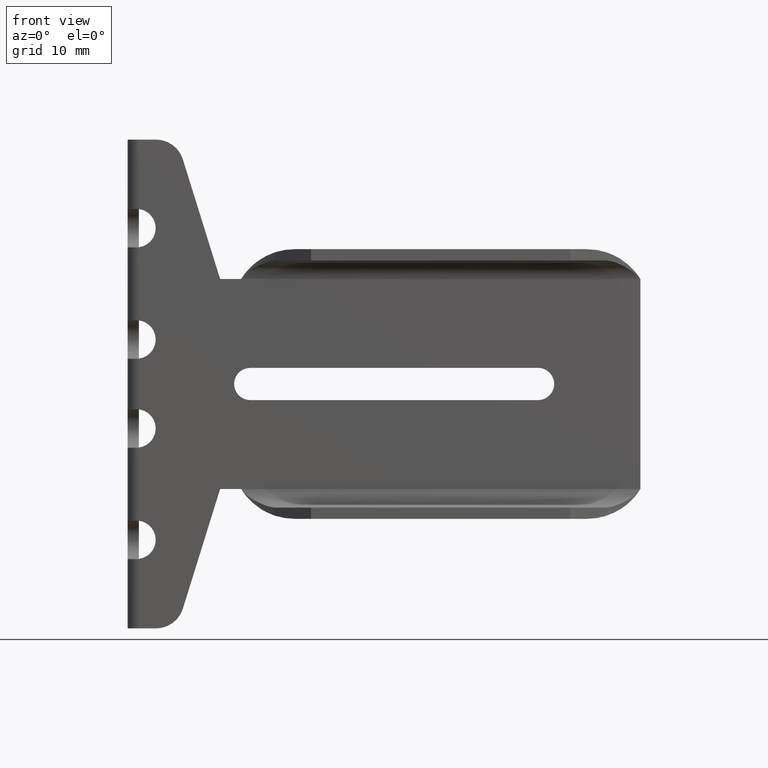
[diagram: clean part render]
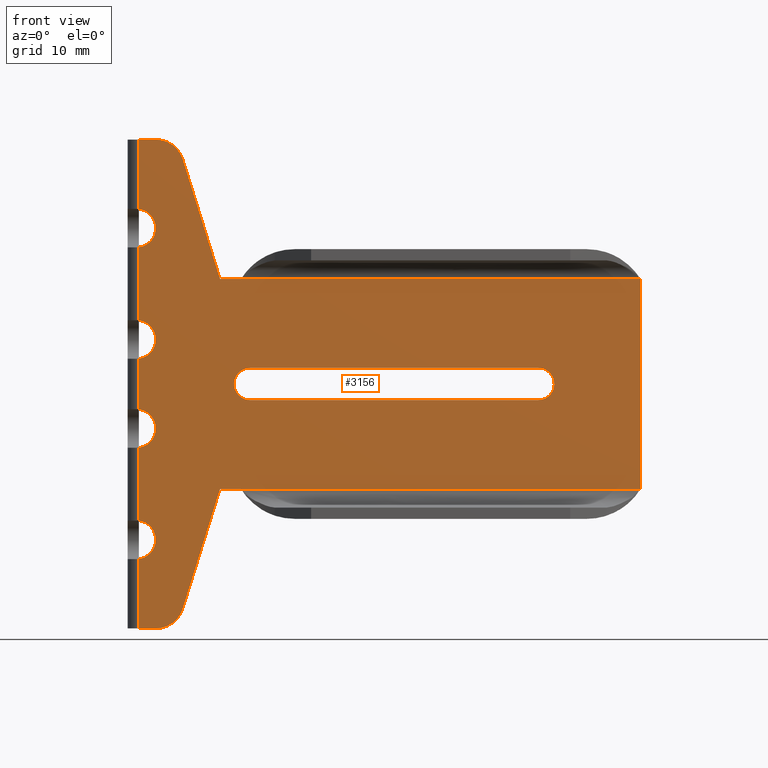
[diagram: same view with one face highlighted and labeled with its STEP entity id]
A machine part, front view. The second image highlights one B-rep face of the part: STEP entity #3156.
In plain terms, the highlighted face is a freeform B-spline surface patch.
Its self-contained STEP definition (entity closure, byte-faithful):
#49=CARTESIAN_POINT('',(17.500000000000000,-18.300000000000001,-2.300000000000000));
#50=VERTEX_POINT('',#49);
#51=CARTESIAN_POINT('',(58.600000000000001,-18.300000000000001,-2.300000000000000));
#52=VERTEX_POINT('',#51);
#53=CARTESIAN_POINT('',(17.500000000000000,-18.300000000000001,-2.300000000000000));
#54=CARTESIAN_POINT('',(58.600000000000001,-18.300000000000001,-2.300000000000000));
#55=QUASI_UNIFORM_CURVE('',1,(#53,#54),.UNSPECIFIED.,.F.,.U.);
#56=EDGE_CURVE('',#50,#52,#55,.T.);
#98=CARTESIAN_POINT('',(17.500000000000000,-18.300000000000001,2.300000000000000));
#99=VERTEX_POINT('',#98);
#100=CARTESIAN_POINT('',(17.500000000000000,-18.300000000000001,2.300000000000000));
#101=CARTESIAN_POINT('',(15.199999999999999,-18.300000000000004,2.300000000000000));
#102=CARTESIAN_POINT('',(15.199999999999999,-18.300000000000001,0.0));
#103=CARTESIAN_POINT('',(15.199999999999999,-18.300000000000004,-2.300000000000000));
#104=CARTESIAN_POINT('',(17.500000000000000,-18.300000000000001,-2.300000000000000));
#112=(BOUNDED_CURVE()B_SPLINE_CURVE(2,(#100,#101,#102,#103,#104),.UNSPECIFIED.,.F.,.U.)B_SPLINE_CURVE_WITH_KNOTS((3,2,3),(0.0,0.500000000000000,1.0),.UNSPECIFIED.)CURVE()GEOMETRIC_REPRESENTATION_ITEM()RATIONAL_B_SPLINE_CURVE((1.0,0.707106781186547,1.0,0.707106781186547,1.0))REPRESENTATION_ITEM(''));
#113=EDGE_CURVE('',#99,#50,#112,.T.);
#146=CARTESIAN_POINT('',(58.600000000000001,-18.300000000000001,2.300000000000000));
#147=VERTEX_POINT('',#146);
#148=CARTESIAN_POINT('',(58.600000000000001,-18.300000000000001,2.300000000000000));
#149=CARTESIAN_POINT('',(17.500000000000000,-18.300000000000001,2.300000000000000));
#150=QUASI_UNIFORM_CURVE('',1,(#148,#149),.UNSPECIFIED.,.F.,.U.);
#151=EDGE_CURVE('',#147,#99,#150,.T.);
#187=CARTESIAN_POINT('',(58.600000000000001,-18.300000000000001,-2.300000000000000));
#188=CARTESIAN_POINT('',(60.899999999999999,-18.300000000000004,-2.300000000000000));
#189=CARTESIAN_POINT('',(60.899999999999999,-18.300000000000001,0.0));
#190=CARTESIAN_POINT('',(60.899999999999999,-18.300000000000004,2.300000000000000));
#191=CARTESIAN_POINT('',(58.600000000000001,-18.300000000000001,2.300000000000000));
#199=(BOUNDED_CURVE()B_SPLINE_CURVE(2,(#187,#188,#189,#190,#191),.UNSPECIFIED.,.F.,.U.)B_SPLINE_CURVE_WITH_KNOTS((3,2,3),(0.0,0.500000000000000,1.0),.UNSPECIFIED.)CURVE()GEOMETRIC_REPRESENTATION_ITEM()RATIONAL_B_SPLINE_CURVE((1.0,0.707106781186547,1.0,0.707106781186547,1.0))REPRESENTATION_ITEM(''));
#200=EDGE_CURVE('',#52,#147,#199,.T.);
#240=CARTESIAN_POINT('',(1.600000000000000,-18.300000000000001,-24.977636339397151));
#241=VERTEX_POINT('',#240);
#242=CARTESIAN_POINT('',(1.600000000000000,-18.300000000000001,-19.522363660602849));
#243=VERTEX_POINT('',#242);
#244=CARTESIAN_POINT('',(1.600000000000001,-18.300000000000001,-24.977636339397161));
#245=CARTESIAN_POINT('',(3.999999999999900,-18.300000000000004,-24.669677397852244));
#246=CARTESIAN_POINT('',(3.999999999999900,-18.300000000000001,-22.250000000000000));
#247=CARTESIAN_POINT('',(3.999999999999900,-18.300000000000004,-19.830322602147753));
#248=CARTESIAN_POINT('',(1.600000000000002,-18.300000000000001,-19.522363660602839));
#256=(BOUNDED_CURVE()B_SPLINE_CURVE(2,(#244,#245,#246,#247,#248),.UNSPECIFIED.,.F.,.U.)B_SPLINE_CURVE_WITH_KNOTS((3,2,3),(0.0,0.500000000000000,1.0),.UNSPECIFIED.)CURVE()GEOMETRIC_REPRESENTATION_ITEM()RATIONAL_B_SPLINE_CURVE((1.0,0.750757193529561,1.0,0.750757193529561,1.0))REPRESENTATION_ITEM(''));
#257=EDGE_CURVE('',#241,#243,#256,.T.);
#296=CARTESIAN_POINT('',(1.600000000000045,-18.300000000000001,-19.500000000000000));
#297=VERTEX_POINT('',#296);
#349=CARTESIAN_POINT('',(1.600000000000045,-18.300000000000001,-25.0));
#350=VERTEX_POINT('',#349);
#466=CARTESIAN_POINT('',(1.600000000000000,-18.300000000000001,-9.077636339397149));
#467=VERTEX_POINT('',#466);
#468=CARTESIAN_POINT('',(1.600000000000000,-18.300000000000001,-3.622363660602835));
#469=VERTEX_POINT('',#468);
#470=CARTESIAN_POINT('',(1.600000000000001,-18.300000000000001,-9.077636339397158));
#471=CARTESIAN_POINT('',(3.999999999999900,-18.300000000000004,-8.769677397852240));
#472=CARTESIAN_POINT('',(3.999999999999900,-18.300000000000001,-6.350000000000000));
#473=CARTESIAN_POINT('',(3.999999999999900,-18.300000000000004,-3.930322602147758));
#474=CARTESIAN_POINT('',(1.599999999999999,-18.300000000000001,-3.622363660602841));
#482=(BOUNDED_CURVE()B_SPLINE_CURVE(2,(#470,#471,#472,#473,#474),.UNSPECIFIED.,.F.,.U.)B_SPLINE_CURVE_WITH_KNOTS((3,2,3),(0.0,0.500000000000000,1.0),.UNSPECIFIED.)CURVE()GEOMETRIC_REPRESENTATION_ITEM()RATIONAL_B_SPLINE_CURVE((1.0,0.750757193529561,1.0,0.750757193529561,1.0))REPRESENTATION_ITEM(''));
#483=EDGE_CURVE('',#467,#469,#482,.T.);
#522=CARTESIAN_POINT('',(1.600000000000045,-18.300000000000001,-3.600000000000000));
#523=VERTEX_POINT('',#522);
#575=CARTESIAN_POINT('',(1.600000000000045,-18.300000000000001,-9.100000000000000));
#576=VERTEX_POINT('',#575);
#692=CARTESIAN_POINT('',(1.600000000000000,-18.300000000000001,3.622363660602835));
#693=VERTEX_POINT('',#692);
#694=CARTESIAN_POINT('',(1.600000000000000,-18.300000000000001,9.077636339397149));
#695=VERTEX_POINT('',#694);
#696=CARTESIAN_POINT('',(1.599999999999998,-18.300000000000001,3.622363660602841));
#697=CARTESIAN_POINT('',(3.999999999999900,-18.299999999999994,3.930322602147759));
#698=CARTESIAN_POINT('',(3.999999999999900,-18.300000000000001,6.350000000000000));
#699=CARTESIAN_POINT('',(3.999999999999900,-18.299999999999994,8.769677397852240));
#700=CARTESIAN_POINT('',(1.600000000000002,-18.300000000000001,9.077636339397158));
#708=(BOUNDED_CURVE()B_SPLINE_CURVE(2,(#696,#697,#698,#699,#700),.UNSPECIFIED.,.F.,.U.)B_SPLINE_CURVE_WITH_KNOTS((3,2,3),(0.0,0.500000000000000,1.0),.UNSPECIFIED.)CURVE()GEOMETRIC_REPRESENTATION_ITEM()RATIONAL_B_SPLINE_CURVE((1.0,0.750757193529560,1.0,0.750757193529560,1.0))REPRESENTATION_ITEM(''));
#709=EDGE_CURVE('',#693,#695,#708,.T.);
#748=CARTESIAN_POINT('',(1.600000000000045,-18.300000000000001,9.100000000000000));
#749=VERTEX_POINT('',#748);
#801=CARTESIAN_POINT('',(1.600000000000045,-18.300000000000001,3.600000000000000));
#802=VERTEX_POINT('',#801);
#918=CARTESIAN_POINT('',(1.600000000000000,-18.300000000000001,19.522363660602849));
#919=VERTEX_POINT('',#918);
#920=CARTESIAN_POINT('',(1.600000000000000,-18.300000000000001,24.977636339397151));
#921=VERTEX_POINT('',#920);
#922=CARTESIAN_POINT('',(1.600000000000001,-18.300000000000001,19.522363660602839));
#923=CARTESIAN_POINT('',(3.999999999999900,-18.300000000000004,19.830322602147753));
#924=CARTESIAN_POINT('',(3.999999999999900,-18.300000000000001,22.250000000000000));
#925=CARTESIAN_POINT('',(3.999999999999900,-18.300000000000004,24.669677397852244));
#926=CARTESIAN_POINT('',(1.600000000000002,-18.300000000000001,24.977636339397161));
#934=(BOUNDED_CURVE()B_SPLINE_CURVE(2,(#922,#923,#924,#925,#926),.UNSPECIFIED.,.F.,.U.)B_SPLINE_CURVE_WITH_KNOTS((3,2,3),(0.0,0.500000000000000,1.0),.UNSPECIFIED.)CURVE()GEOMETRIC_REPRESENTATION_ITEM()RATIONAL_B_SPLINE_CURVE((1.0,0.750757193529561,1.0,0.750757193529561,1.0))REPRESENTATION_ITEM(''));
#935=EDGE_CURVE('',#919,#921,#934,.T.);
#974=CARTESIAN_POINT('',(1.600000000000045,-18.300000000000001,25.0));
#975=VERTEX_POINT('',#974);
#1027=CARTESIAN_POINT('',(1.600000000000000,-18.300000000000001,19.500000000000000));
#1028=VERTEX_POINT('',#1027);
#1327=CARTESIAN_POINT('',(1.600000000000000,-18.300000000000001,34.899999999999999));
#1328=VERTEX_POINT('',#1327);
#1329=CARTESIAN_POINT('',(1.600000000000000,-18.300000000000001,34.899999999999999));
#1330=CARTESIAN_POINT('',(1.600000000000045,-18.300000000000001,25.0));
#1331=QUASI_UNIFORM_CURVE('',1,(#1329,#1330),.UNSPECIFIED.,.F.,.U.);
#1332=EDGE_CURVE('',#1328,#975,#1331,.T.);
#1380=CARTESIAN_POINT('',(16.199999999999999,-18.300000000000001,15.0));
#1381=VERTEX_POINT('',#1380);
#1394=CARTESIAN_POINT('',(13.199999999999999,-18.300000000000001,15.0));
#1395=VERTEX_POINT('',#1394);
#1401=CARTESIAN_POINT('',(13.199999999999999,-18.300000000000001,15.0));
#1402=CARTESIAN_POINT('',(16.199999999999999,-18.300000000000001,15.0));
#1403=QUASI_UNIFORM_CURVE('',1,(#1401,#1402),.UNSPECIFIED.,.F.,.U.);
#1404=EDGE_CURVE('',#1395,#1381,#1403,.T.);
#1422=CARTESIAN_POINT('',(7.875532910344050,-18.300000000000001,32.089821435145403));
#1423=VERTEX_POINT('',#1422);
#1429=CARTESIAN_POINT('',(7.875532910344050,-18.300000000000001,32.089821435145403));
#1430=CARTESIAN_POINT('',(13.199999999999999,-18.300000000000001,15.0));
#1431=QUASI_UNIFORM_CURVE('',1,(#1429,#1430),.UNSPECIFIED.,.F.,.U.);
#1432=EDGE_CURVE('',#1423,#1395,#1431,.T.);
#1466=CARTESIAN_POINT('',(4.056589999999799,-18.300000000000001,34.899999999999999));
#1467=VERTEX_POINT('',#1466);
#1473=CARTESIAN_POINT('',(7.875532910344041,-18.300000000000001,32.089821435145403));
#1474=CARTESIAN_POINT('',(6.999999871085082,-18.300000000000001,34.899999999999999));
#1475=CARTESIAN_POINT('',(4.056589999999799,-18.300000000000001,34.899999999999999));
#1483=(BOUNDED_CURVE()B_SPLINE_CURVE(2,(#1473,#1474,#1475),.UNSPECIFIED.,.F.,.U.)CURVE()GEOMETRIC_REPRESENTATION_ITEM()QUASI_UNIFORM_CURVE()RATIONAL_B_SPLINE_CURVE((1.0,0.805436328577980,1.0))REPRESENTATION_ITEM(''));
#1484=EDGE_CURVE('',#1423,#1467,#1483,.T.);
#1503=CARTESIAN_POINT('',(1.600000000000000,-18.300000000000001,34.899999999999999));
#1504=CARTESIAN_POINT('',(4.056589999999799,-18.300000000000001,34.899999999999999));
#1505=QUASI_UNIFORM_CURVE('',1,(#1503,#1504),.UNSPECIFIED.,.F.,.U.);
#1506=EDGE_CURVE('',#1328,#1467,#1505,.T.);
#1584=CARTESIAN_POINT('',(4.056589999999799,-18.300000000000001,-34.899999999999999));
#1585=VERTEX_POINT('',#1584);
#1591=CARTESIAN_POINT('',(1.600000000000000,-18.300000000000001,-34.899999999999999));
#1592=VERTEX_POINT('',#1591);
#1593=CARTESIAN_POINT('',(4.056589999999799,-18.300000000000001,-34.899999999999999));
#1594=CARTESIAN_POINT('',(1.600000000000000,-18.300000000000001,-34.899999999999999));
#1595=QUASI_UNIFORM_CURVE('',1,(#1593,#1594),.UNSPECIFIED.,.F.,.U.);
#1596=EDGE_CURVE('',#1585,#1592,#1595,.T.);
#1643=CARTESIAN_POINT('',(7.875533000000001,-18.300000000000001,-32.089821000000093));
#1644=VERTEX_POINT('',#1643);
#1650=CARTESIAN_POINT('',(4.056589999999799,-18.300000000000001,-34.899999999999999));
#1651=CARTESIAN_POINT('',(7.000000211842425,-18.299999999999997,-34.900000000000006));
#1652=CARTESIAN_POINT('',(7.875533000000001,-18.300000000000001,-32.089821000000093));
#1660=(BOUNDED_CURVE()B_SPLINE_CURVE(2,(#1650,#1651,#1652),.UNSPECIFIED.,.F.,.U.)CURVE()GEOMETRIC_REPRESENTATION_ITEM()QUASI_UNIFORM_CURVE()RATIONAL_B_SPLINE_CURVE((1.0,0.805436295823582,1.0))REPRESENTATION_ITEM(''));
#1661=EDGE_CURVE('',#1585,#1644,#1660,.T.);
#1680=CARTESIAN_POINT('',(13.199999999999999,-18.300000000000001,-15.0));
#1681=VERTEX_POINT('',#1680);
#1687=CARTESIAN_POINT('',(13.199999999999999,-18.300000000000001,-15.0));
#1688=CARTESIAN_POINT('',(7.875533000000001,-18.300000000000001,-32.089821000000093));
#1689=QUASI_UNIFORM_CURVE('',1,(#1687,#1688),.UNSPECIFIED.,.F.,.U.);
#1690=EDGE_CURVE('',#1681,#1644,#1689,.T.);
#1708=CARTESIAN_POINT('',(16.199999999999999,-18.300000000000001,-15.0));
#1709=VERTEX_POINT('',#1708);
#1715=CARTESIAN_POINT('',(16.199999999999999,-18.300000000000001,-15.0));
#1716=CARTESIAN_POINT('',(13.199999999999999,-18.300000000000001,-15.0));
#1717=QUASI_UNIFORM_CURVE('',1,(#1715,#1716),.UNSPECIFIED.,.F.,.U.);
#1718=EDGE_CURVE('',#1709,#1681,#1717,.T.);
#2488=CARTESIAN_POINT('',(73.200000000000003,-18.300000000000001,14.999998470882820));
#2489=VERTEX_POINT('',#2488);
#2490=CARTESIAN_POINT('',(73.200000000000003,-18.300000000000949,-15.000000685119350));
#2491=VERTEX_POINT('',#2490);
#2492=CARTESIAN_POINT('',(73.200000000000003,-18.300000000000001,14.999998470882820));
#2493=CARTESIAN_POINT('',(73.200000000000003,-18.300000000000949,-15.000000685119350));
#2494=QUASI_UNIFORM_CURVE('',1,(#2492,#2493),.UNSPECIFIED.,.F.,.U.);
#2495=EDGE_CURVE('',#2489,#2491,#2494,.T.);
#2672=CARTESIAN_POINT('',(16.199999999999999,-18.300000000000001,15.0));
#2673=CARTESIAN_POINT('',(73.200000000000003,-18.300000000000001,14.999998470882820));
#2674=QUASI_UNIFORM_CURVE('',1,(#2672,#2673),.UNSPECIFIED.,.F.,.U.);
#2675=EDGE_CURVE('',#1381,#2489,#2674,.T.);
#2803=CARTESIAN_POINT('',(16.199999999999999,-18.300000000000001,-15.0));
#2804=CARTESIAN_POINT('',(73.200000000000003,-18.300000000000949,-15.000000685119350));
#2805=QUASI_UNIFORM_CURVE('',1,(#2803,#2804),.UNSPECIFIED.,.F.,.U.);
#2806=EDGE_CURVE('',#1709,#2491,#2805,.T.);
#2828=CARTESIAN_POINT('',(1.600000000000000,-18.300000000000001,19.500000000000000));
#2829=CARTESIAN_POINT('',(1.600000000000045,-18.300000000000001,9.100000000000000));
#2830=QUASI_UNIFORM_CURVE('',1,(#2828,#2829),.UNSPECIFIED.,.F.,.U.);
#2831=EDGE_CURVE('',#1028,#749,#2830,.T.);
#2849=CARTESIAN_POINT('',(1.600000000000000,-18.300000000000001,24.977636339397151));
#2850=CARTESIAN_POINT('',(1.600000000000045,-18.300000000000001,25.0));
#2851=QUASI_UNIFORM_CURVE('',1,(#2849,#2850),.UNSPECIFIED.,.F.,.U.);
#2852=EDGE_CURVE('',#921,#975,#2851,.T.);
#2863=CARTESIAN_POINT('',(1.600000000000000,-18.300000000000001,19.500000000000000));
#2864=CARTESIAN_POINT('',(1.600000000000000,-18.300000000000001,19.522363660602849));
#2865=QUASI_UNIFORM_CURVE('',1,(#2863,#2864),.UNSPECIFIED.,.F.,.U.);
#2866=EDGE_CURVE('',#1028,#919,#2865,.T.);
#2893=CARTESIAN_POINT('',(1.600000000000045,-18.300000000000001,3.600000000000000));
#2894=CARTESIAN_POINT('',(1.600000000000045,-18.300000000000001,-3.600000000000000));
#2895=QUASI_UNIFORM_CURVE('',1,(#2893,#2894),.UNSPECIFIED.,.F.,.U.);
#2896=EDGE_CURVE('',#802,#523,#2895,.T.);
#2914=CARTESIAN_POINT('',(1.600000000000000,-18.300000000000001,9.077636339397149));
#2915=CARTESIAN_POINT('',(1.600000000000045,-18.300000000000001,9.100000000000000));
#2916=QUASI_UNIFORM_CURVE('',1,(#2914,#2915),.UNSPECIFIED.,.F.,.U.);
#2917=EDGE_CURVE('',#695,#749,#2916,.T.);
#2928=CARTESIAN_POINT('',(1.600000000000045,-18.300000000000001,3.600000000000000));
#2929=CARTESIAN_POINT('',(1.600000000000000,-18.300000000000001,3.622363660602835));
#2930=QUASI_UNIFORM_CURVE('',1,(#2928,#2929),.UNSPECIFIED.,.F.,.U.);
#2931=EDGE_CURVE('',#802,#693,#2930,.T.);
#2958=CARTESIAN_POINT('',(1.600000000000045,-18.300000000000001,-9.100000000000000));
#2959=CARTESIAN_POINT('',(1.600000000000045,-18.300000000000001,-19.500000000000000));
#2960=QUASI_UNIFORM_CURVE('',1,(#2958,#2959),.UNSPECIFIED.,.F.,.U.);
#2961=EDGE_CURVE('',#576,#297,#2960,.T.);
#2979=CARTESIAN_POINT('',(1.600000000000000,-18.300000000000001,-3.622363660602835));
#2980=CARTESIAN_POINT('',(1.600000000000045,-18.300000000000001,-3.600000000000000));
#2981=QUASI_UNIFORM_CURVE('',1,(#2979,#2980),.UNSPECIFIED.,.F.,.U.);
#2982=EDGE_CURVE('',#469,#523,#2981,.T.);
#2993=CARTESIAN_POINT('',(1.600000000000045,-18.300000000000001,-9.100000000000000));
#2994=CARTESIAN_POINT('',(1.600000000000000,-18.300000000000001,-9.077636339397149));
#2995=QUASI_UNIFORM_CURVE('',1,(#2993,#2994),.UNSPECIFIED.,.F.,.U.);
#2996=EDGE_CURVE('',#576,#467,#2995,.T.);
#3025=CARTESIAN_POINT('',(1.600000000000045,-18.300000000000001,-25.0));
#3026=CARTESIAN_POINT('',(1.600000000000000,-18.300000000000001,-34.899999999999999));
#3027=QUASI_UNIFORM_CURVE('',1,(#3025,#3026),.UNSPECIFIED.,.F.,.U.);
#3028=EDGE_CURVE('',#350,#1592,#3027,.T.);
#3044=CARTESIAN_POINT('',(1.600000000000000,-18.300000000000001,-19.522363660602849));
#3045=CARTESIAN_POINT('',(1.600000000000045,-18.300000000000001,-19.500000000000000));
#3046=QUASI_UNIFORM_CURVE('',1,(#3044,#3045),.UNSPECIFIED.,.F.,.U.);
#3047=EDGE_CURVE('',#243,#297,#3046,.T.);
#3058=CARTESIAN_POINT('',(1.600000000000045,-18.300000000000001,-25.0));
#3059=CARTESIAN_POINT('',(1.600000000000000,-18.300000000000001,-24.977636339397151));
#3060=QUASI_UNIFORM_CURVE('',1,(#3058,#3059),.UNSPECIFIED.,.F.,.U.);
#3061=EDGE_CURVE('',#350,#241,#3060,.T.);
#3115=CARTESIAN_POINT('',(-1.976419605419811,-18.300000000000001,38.386511830411422));
#3116=CARTESIAN_POINT('',(-1.976419605419811,-18.300000000000001,-38.386511830411422));
#3117=CARTESIAN_POINT('',(76.776416404650405,-18.300000000000001,38.386511830411422));
#3118=CARTESIAN_POINT('',(76.776416404650405,-18.300000000000001,-38.386511830411422));
#3119=B_SPLINE_SURFACE_WITH_KNOTS('',1,1,((#3115,#3117),(#3116,#3118)),.UNSPECIFIED.,.F.,.F.,.U.,(2,2),(2,2),(0.0,76.773023660822844),(0.0,78.752836010070212),.UNSPECIFIED.);
#3120=ORIENTED_EDGE('',*,*,#3047,.F.);
#3121=ORIENTED_EDGE('',*,*,#257,.F.);
#3122=ORIENTED_EDGE('',*,*,#3061,.F.);
#3123=ORIENTED_EDGE('',*,*,#3028,.T.);
#3124=ORIENTED_EDGE('',*,*,#1596,.F.);
#3125=ORIENTED_EDGE('',*,*,#1661,.T.);
#3126=ORIENTED_EDGE('',*,*,#1690,.F.);
#3127=ORIENTED_EDGE('',*,*,#1718,.F.);
#3128=ORIENTED_EDGE('',*,*,#2806,.T.);
#3129=ORIENTED_EDGE('',*,*,#2495,.F.);
#3130=ORIENTED_EDGE('',*,*,#2675,.F.);
#3131=ORIENTED_EDGE('',*,*,#1404,.F.);
#3132=ORIENTED_EDGE('',*,*,#1432,.F.);
#3133=ORIENTED_EDGE('',*,*,#1484,.T.);
#3134=ORIENTED_EDGE('',*,*,#1506,.F.);
#3135=ORIENTED_EDGE('',*,*,#1332,.T.);
#3136=ORIENTED_EDGE('',*,*,#2852,.F.);
#3137=ORIENTED_EDGE('',*,*,#935,.F.);
#3138=ORIENTED_EDGE('',*,*,#2866,.F.);
#3139=ORIENTED_EDGE('',*,*,#2831,.T.);
#3140=ORIENTED_EDGE('',*,*,#2917,.F.);
#3141=ORIENTED_EDGE('',*,*,#709,.F.);
#3142=ORIENTED_EDGE('',*,*,#2931,.F.);
#3143=ORIENTED_EDGE('',*,*,#2896,.T.);
#3144=ORIENTED_EDGE('',*,*,#2982,.F.);
#3145=ORIENTED_EDGE('',*,*,#483,.F.);
#3146=ORIENTED_EDGE('',*,*,#2996,.F.);
#3147=ORIENTED_EDGE('',*,*,#2961,.T.);
#3148=EDGE_LOOP('',(#3120,#3121,#3122,#3123,#3124,#3125,#3126,#3127,#3128,#3129,#3130,#3131,#3132,#3133,#3134,#3135,#3136,#3137,#3138,#3139,#3140,#3141,#3142,#3143,#3144,#3145,#3146,#3147));
#3149=FACE_OUTER_BOUND('',#3148,.T.);
#3150=ORIENTED_EDGE('',*,*,#200,.F.);
#3151=ORIENTED_EDGE('',*,*,#56,.F.);
#3152=ORIENTED_EDGE('',*,*,#113,.F.);
#3153=ORIENTED_EDGE('',*,*,#151,.F.);
#3154=EDGE_LOOP('',(#3150,#3151,#3152,#3153));
#3155=FACE_BOUND('',#3154,.T.);
#3156=ADVANCED_FACE('',(#3149,#3155),#3119,.T.);